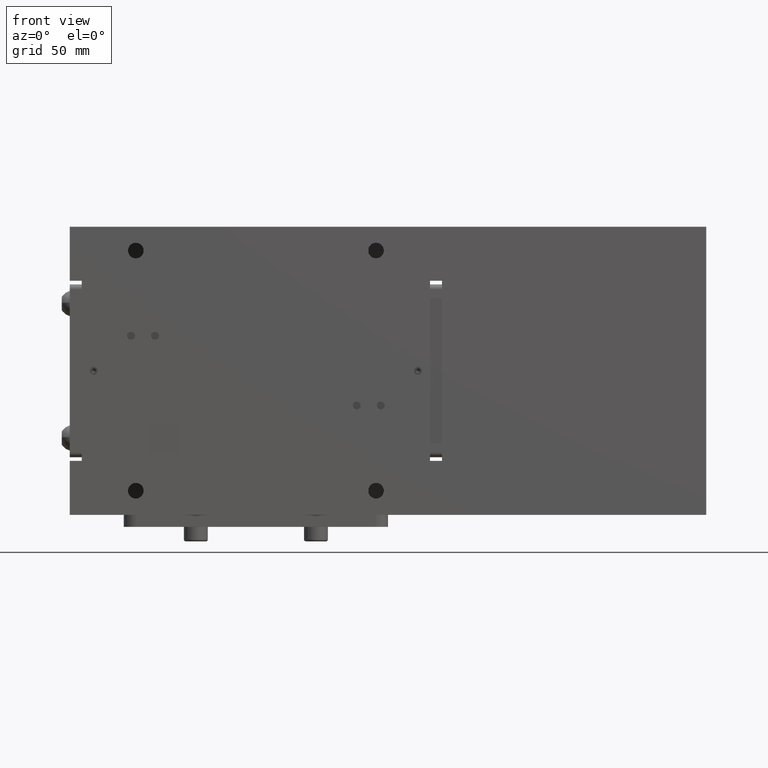
[diagram: clean part render]
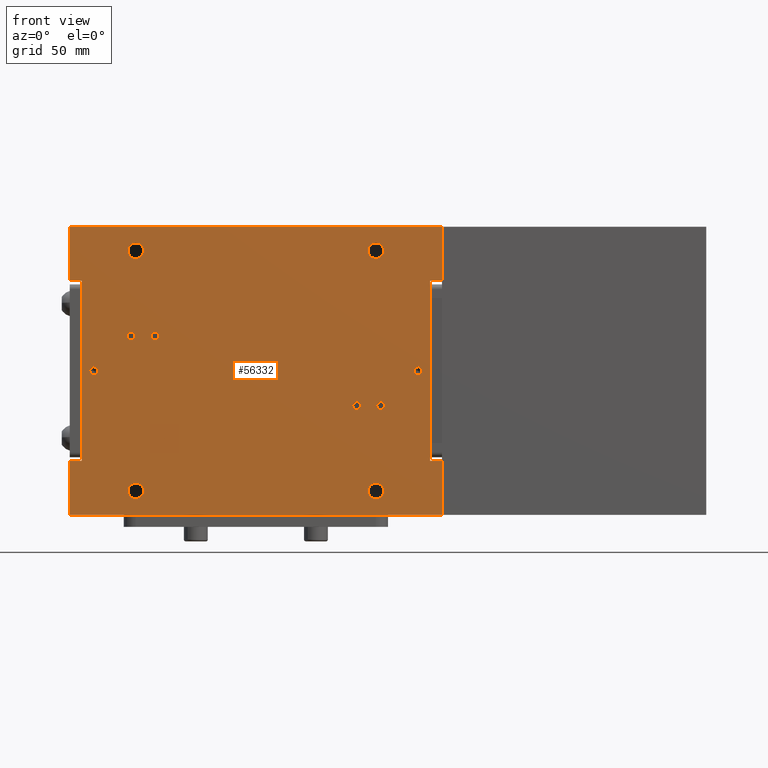
[diagram: same view with one face highlighted and labeled with its STEP entity id]
A machine part, front view. The second image highlights one B-rep face of the part: STEP entity #56332.
In plain terms, the highlighted planar face has unit normal (-0, 1, 0).
Its self-contained STEP definition (entity closure, byte-faithful):
#307 = VERTEX_POINT ( 'NONE', #23247 ) ;
#1200 = DIRECTION ( 'NONE',  ( 0.000000000000000000, 0.000000000000000000, 1.000000000000000000 ) ) ;
#1221 = ORIENTED_EDGE ( 'NONE', *, *, #80671, .T. ) ;
#1493 = CARTESIAN_POINT ( 'NONE',  ( -44.35429836251654478, -18.10616229669854960, -47.75124999999999886 ) ) ;
#1503 = VERTEX_POINT ( 'NONE', #42353 ) ;
#1742 = DIRECTION ( 'NONE',  ( 0.000000000000000000, 0.000000000000000000, 1.000000000000000000 ) ) ;
#2254 = EDGE_LOOP ( 'NONE', ( #80503, #1221 ) ) ;
#2604 = CARTESIAN_POINT ( 'NONE',  ( -26.85429836251655189, -18.10616229669854960, 7.148749999999999716 ) ) ;
#2997 = VERTEX_POINT ( 'NONE', #17895 ) ;
#3088 = CARTESIAN_POINT ( 'NONE',  ( -42.35429836251655189, -18.10616229669854960, -9.001250000000000639 ) ) ;
#3597 = EDGE_LOOP ( 'NONE', ( #56552, #100903 ) ) ;
#3642 = AXIS2_PLACEMENT_3D ( 'NONE', #10009, #41010, #1200 ) ;
#4418 = CARTESIAN_POINT ( 'NONE',  ( -26.85429836251655189, -18.10616229669854960, 5.498750000000000249 ) ) ;
#4572 = DIRECTION ( 'NONE',  ( 0.000000000000000000, 0.000000000000000000, -1.000000000000000000 ) ) ;
#4730 = DIRECTION ( 'NONE',  ( 0.000000000000000000, 1.000000000000000000, 0.000000000000000000 ) ) ;
#5128 = EDGE_LOOP ( 'NONE', ( #80341, #46297 ) ) ;
#5617 = DIRECTION ( 'NONE',  ( 0.000000000000000000, 1.000000000000000000, 0.000000000000000000 ) ) ;
#5860 = VERTEX_POINT ( 'NONE', #48699 ) ;
#5982 = VECTOR ( 'NONE', #76721, 1000.000000000000000 ) ;
#6196 = CARTESIAN_POINT ( 'NONE',  ( -171.8542983625165164, -18.10616229669854960, 65.49875000000000114 ) ) ;
#6646 = FACE_BOUND ( 'NONE', #77941, .T. ) ;
#7449 = DIRECTION ( 'NONE',  ( 1.000000000000000000, 0.000000000000000000, 0.000000000000000000 ) ) ;
#7868 = EDGE_CURVE ( 'NONE', #1503, #36869, #94006, .T. ) ;
#7961 = CIRCLE ( 'NONE', #34397, 3.250000000000002665 ) ;
#8284 = CARTESIAN_POINT ( 'NONE',  ( -21.85429836251660163, -18.10616229669854960, -32.00124999999999886 ) ) ;
#8466 = VERTEX_POINT ( 'NONE', #94250 ) ;
#8762 = CARTESIAN_POINT ( 'NONE',  ( -144.3542983625166016, -18.10616229669854960, 58.74875000000000114 ) ) ;
#9045 = EDGE_CURVE ( 'NONE', #95025, #1503, #66116, .T. ) ;
#9148 = EDGE_CURVE ( 'NONE', #13695, #70815, #74669, .T. ) ;
#9570 = CARTESIAN_POINT ( 'NONE',  ( -144.3542983625166016, -18.10616229669854960, -44.50124999999999886 ) ) ;
#9864 = EDGE_CURVE ( 'NONE', #32873, #14777, #102205, .T. ) ;
#10009 = CARTESIAN_POINT ( 'NONE',  ( -136.3542983625166016, -18.10616229669854960, 19.99874999999999758 ) ) ;
#10697 = AXIS2_PLACEMENT_3D ( 'NONE', #51272, #10971, #82768 ) ;
#10792 = ORIENTED_EDGE ( 'NONE', *, *, #89266, .T. ) ;
#10971 = DIRECTION ( 'NONE',  ( 0.000000000000000000, 1.000000000000000000, 0.000000000000000000 ) ) ;
#12029 = EDGE_LOOP ( 'NONE', ( #91526, #21223, #33954, #73159, #85878, #92206, #70448, #78042, #54751, #10792, #73101, #37298 ) ) ;
#12072 = EDGE_CURVE ( 'NONE', #14777, #32873, #32642, .T. ) ;
#12330 = DIRECTION ( 'NONE',  ( 0.000000000000000000, -1.000000000000000000, 0.000000000000000000 ) ) ;
#12857 = FACE_BOUND ( 'NONE', #5128, .T. ) ;
#13369 = FACE_BOUND ( 'NONE', #28190, .T. ) ;
#13520 = DIRECTION ( 'NONE',  ( 0.000000000000000000, 0.000000000000000000, 1.000000000000000000 ) ) ;
#13650 = CARTESIAN_POINT ( 'NONE',  ( -166.8542983625164879, -18.10616229669854960, 42.99875000000000114 ) ) ;
#13695 = VERTEX_POINT ( 'NONE', #43090 ) ;
#13783 = DIRECTION ( 'NONE',  ( 0.000000000000000000, 1.000000000000000000, 0.000000000000000000 ) ) ;
#13878 = CARTESIAN_POINT ( 'NONE',  ( -218.3542983625164879, -18.10616229669854960, 65.49875000000000114 ) ) ;
#14713 = CARTESIAN_POINT ( 'NONE',  ( -21.85429836251660163, -18.10616229669854960, -32.00124999999999886 ) ) ;
#14723 = AXIS2_PLACEMENT_3D ( 'NONE', #51949, #61267, #92737 ) ;
#14777 = VERTEX_POINT ( 'NONE', #62173 ) ;
#14916 = DIRECTION ( 'NONE',  ( 0.000000000000000000, 0.000000000000000000, 1.000000000000000000 ) ) ;
#15637 = ORIENTED_EDGE ( 'NONE', *, *, #65163, .T. ) ;
#15784 = DIRECTION ( 'NONE',  ( 0.000000000000000000, 0.000000000000000000, 1.000000000000000000 ) ) ;
#16014 = EDGE_CURVE ( 'NONE', #84184, #48202, #18624, .T. ) ;
#16158 = CARTESIAN_POINT ( 'NONE',  ( -161.8542983625164879, -18.10616229669854960, 3.848750000000000338 ) ) ;
#16332 = VECTOR ( 'NONE', #41901, 1000.000000000000000 ) ;
#16625 = AXIS2_PLACEMENT_3D ( 'NONE', #82014, #52545, #99564 ) ;
#16761 = DIRECTION ( 'NONE',  ( 0.000000000000000000, 0.000000000000000000, 1.000000000000000000 ) ) ;
#16932 = CARTESIAN_POINT ( 'NONE',  ( -171.8542983625165164, -18.10616229669854960, -32.00124999999999886 ) ) ;
#17027 = DIRECTION ( 'NONE',  ( -1.000000000000000000, 0.000000000000000000, 0.000000000000000000 ) ) ;
#17251 = DIRECTION ( 'NONE',  ( 0.000000000000000000, 1.000000000000000000, 0.000000000000000000 ) ) ;
#17672 = ORIENTED_EDGE ( 'NONE', *, *, #9864, .F. ) ;
#17895 = CARTESIAN_POINT ( 'NONE',  ( -44.35429836251654478, -18.10616229669854960, -41.25125000000000597 ) ) ;
#17901 = LINE ( 'NONE', #50428, #94232 ) ;
#18624 = CIRCLE ( 'NONE', #46707, 3.250000000000002665 ) ;
#18680 = AXIS2_PLACEMENT_3D ( 'NONE', #60811, #13783, #84543 ) ;
#19588 = ORIENTED_EDGE ( 'NONE', *, *, #91550, .T. ) ;
#19825 = VERTEX_POINT ( 'NONE', #36019 ) ;
#20040 = DIRECTION ( 'NONE',  ( 0.000000000000000000, 0.000000000000000000, 1.000000000000000000 ) ) ;
#20267 = VECTOR ( 'NONE', #13520, 1000.000000000000000 ) ;
#21223 = ORIENTED_EDGE ( 'NONE', *, *, #80102, .T. ) ;
#21259 = CARTESIAN_POINT ( 'NONE',  ( -144.3542983625166016, -18.10616229669854960, 55.49875000000000114 ) ) ;
#21633 = DIRECTION ( 'NONE',  ( -0.000000000000000000, 1.000000000000000000, 0.000000000000000000 ) ) ;
#21867 = CIRCLE ( 'NONE', #3642, 1.649999999999998579 ) ;
#22224 = VERTEX_POINT ( 'NONE', #64889 ) ;
#22962 = CIRCLE ( 'NONE', #14723, 1.649999999999998579 ) ;
#23247 = CARTESIAN_POINT ( 'NONE',  ( -42.35429836251655189, -18.10616229669854960, -10.65124999999999922 ) ) ;
#23902 = CARTESIAN_POINT ( 'NONE',  ( -136.3542983625166016, -18.10616229669854960, 21.64874999999999972 ) ) ;
#24616 = DIRECTION ( 'NONE',  ( 0.000000000000000000, 1.000000000000000000, 0.000000000000000000 ) ) ;
#24859 = LINE ( 'NONE', #26407, #16332 ) ;
#25233 = CIRCLE ( 'NONE', #38463, 3.250000000000002665 ) ;
#25245 = CARTESIAN_POINT ( 'NONE',  ( -166.8542983625164879, -18.10616229669854960, -32.00124999999999886 ) ) ;
#25277 = VECTOR ( 'NONE', #84782, 1000.000000000000000 ) ;
#26407 = CARTESIAN_POINT ( 'NONE',  ( -218.3542983625164879, -18.10616229669854960, -54.50124999999999886 ) ) ;
#26640 = AXIS2_PLACEMENT_3D ( 'NONE', #26925, #24616, #87612 ) ;
#26695 = ORIENTED_EDGE ( 'NONE', *, *, #61533, .T. ) ;
#26828 = CARTESIAN_POINT ( 'NONE',  ( -166.8542983625164879, -18.10616229669854960, 42.99875000000000114 ) ) ;
#26925 = CARTESIAN_POINT ( 'NONE',  ( -44.35429836251654478, -18.10616229669854960, 55.49875000000000114 ) ) ;
#26989 = CARTESIAN_POINT ( 'NONE',  ( -44.35429836251654478, -18.10616229669854960, -44.50124999999999886 ) ) ;
#28011 = VERTEX_POINT ( 'NONE', #1493 ) ;
#28190 = EDGE_LOOP ( 'NONE', ( #74066, #26695 ) ) ;
#28217 = CIRCLE ( 'NONE', #16625, 1.650000000000000355 ) ;
#28269 = CARTESIAN_POINT ( 'NONE',  ( -161.8542983625164879, -18.10616229669854960, 5.498750000000000249 ) ) ;
#28378 = DIRECTION ( 'NONE',  ( 1.000000000000000000, 0.000000000000000000, 0.000000000000000000 ) ) ;
#28710 = CARTESIAN_POINT ( 'NONE',  ( -144.3542983625166016, -18.10616229669854960, 52.24874999999999403 ) ) ;
#29206 = CARTESIAN_POINT ( 'NONE',  ( -21.85429836251660163, -18.10616229669854960, 42.99875000000000114 ) ) ;
#29228 = AXIS2_PLACEMENT_3D ( 'NONE', #59301, #90801, #20040 ) ;
#29413 = FACE_BOUND ( 'NONE', #89145, .T. ) ;
#29706 = DIRECTION ( 'NONE',  ( 0.000000000000000000, 1.000000000000000000, 0.000000000000000000 ) ) ;
#30359 = CIRCLE ( 'NONE', #45226, 3.250000000000002665 ) ;
#30731 = CARTESIAN_POINT ( 'NONE',  ( -218.3542983625164879, -18.10616229669854960, 65.49875000000000114 ) ) ;
#31014 = AXIS2_PLACEMENT_3D ( 'NONE', #28269, #67014, #99541 ) ;
#31188 = VERTEX_POINT ( 'NONE', #57046 ) ;
#31868 = VERTEX_POINT ( 'NONE', #78931 ) ;
#31937 = VERTEX_POINT ( 'NONE', #16932 ) ;
#32484 = CIRCLE ( 'NONE', #29228, 1.650000000000000355 ) ;
#32642 = CIRCLE ( 'NONE', #31014, 1.649999999999999911 ) ;
#32873 = VERTEX_POINT ( 'NONE', #16158 ) ;
#33954 = ORIENTED_EDGE ( 'NONE', *, *, #41402, .F. ) ;
#34007 = AXIS2_PLACEMENT_3D ( 'NONE', #13878, #21633, #28378 ) ;
#34256 = AXIS2_PLACEMENT_3D ( 'NONE', #38985, #17251, #1742 ) ;
#34397 = AXIS2_PLACEMENT_3D ( 'NONE', #26989, #67278, #90506 ) ;
#34571 = VECTOR ( 'NONE', #7449, 1000.000000000000000 ) ;
#35185 = VERTEX_POINT ( 'NONE', #82139 ) ;
#35319 = VERTEX_POINT ( 'NONE', #2604 ) ;
#36019 = CARTESIAN_POINT ( 'NONE',  ( -144.3542983625166016, -18.10616229669854960, -47.75124999999999886 ) ) ;
#36256 = EDGE_CURVE ( 'NONE', #36869, #47008, #63734, .T. ) ;
#36782 = LINE ( 'NONE', #62072, #20267 ) ;
#36869 = VERTEX_POINT ( 'NONE', #6196 ) ;
#37298 = ORIENTED_EDGE ( 'NONE', *, *, #64914, .F. ) ;
#38463 = AXIS2_PLACEMENT_3D ( 'NONE', #9570, #94790, #15784 ) ;
#38985 = CARTESIAN_POINT ( 'NONE',  ( -42.35429836251655189, -18.10616229669854960, -9.001250000000000639 ) ) ;
#39575 = CIRCLE ( 'NONE', #62660, 1.649999999999999911 ) ;
#39938 = VERTEX_POINT ( 'NONE', #79782 ) ;
#40231 = EDGE_CURVE ( 'NONE', #66039, #85651, #67989, .T. ) ;
#40607 = EDGE_CURVE ( 'NONE', #48202, #84184, #69705, .T. ) ;
#40717 = CARTESIAN_POINT ( 'NONE',  ( -166.8542983625164879, -18.10616229669854960, -32.00124999999999886 ) ) ;
#41010 = DIRECTION ( 'NONE',  ( 0.000000000000000000, 1.000000000000000000, 0.000000000000000000 ) ) ;
#41358 = EDGE_CURVE ( 'NONE', #51465, #95025, #36782, .T. ) ;
#41402 = EDGE_CURVE ( 'NONE', #47008, #39938, #91505, .T. ) ;
#41901 = DIRECTION ( 'NONE',  ( 1.000000000000000000, 0.000000000000000000, 0.000000000000000000 ) ) ;
#42353 = CARTESIAN_POINT ( 'NONE',  ( -171.8542983625165164, -18.10616229669854960, 42.99875000000000114 ) ) ;
#42799 = EDGE_LOOP ( 'NONE', ( #87019, #58514 ) ) ;
#43071 = CARTESIAN_POINT ( 'NONE',  ( -42.35429836251655189, -18.10616229669854960, -7.351250000000000284 ) ) ;
#43090 = CARTESIAN_POINT ( 'NONE',  ( -16.85429836251660163, -18.10616229669854960, -32.00124999999999886 ) ) ;
#44444 = EDGE_CURVE ( 'NONE', #51465, #31937, #55223, .T. ) ;
#44669 = EDGE_CURVE ( 'NONE', #52687, #35319, #98794, .T. ) ;
#45226 = AXIS2_PLACEMENT_3D ( 'NONE', #56175, #64477, #56685 ) ;
#45400 = FACE_BOUND ( 'NONE', #42799, .T. ) ;
#45776 = EDGE_CURVE ( 'NONE', #35319, #52687, #39575, .T. ) ;
#46297 = ORIENTED_EDGE ( 'NONE', *, *, #40607, .T. ) ;
#46707 = AXIS2_PLACEMENT_3D ( 'NONE', #85431, #29706, #54918 ) ;
#46725 = DIRECTION ( 'NONE',  ( 1.000000000000000000, 0.000000000000000000, 0.000000000000000000 ) ) ;
#47008 = VERTEX_POINT ( 'NONE', #95884 ) ;
#47349 = CARTESIAN_POINT ( 'NONE',  ( -26.85429836251655189, -18.10616229669854960, 5.498750000000000249 ) ) ;
#47599 = VECTOR ( 'NONE', #49016, 1000.000000000000000 ) ;
#47709 = CARTESIAN_POINT ( 'NONE',  ( -21.85429836251660163, -18.10616229669854960, 42.99875000000000114 ) ) ;
#47788 = EDGE_CURVE ( 'NONE', #81873, #68776, #87590, .T. ) ;
#48015 = EDGE_CURVE ( 'NONE', #31868, #31937, #17901, .T. ) ;
#48202 = VERTEX_POINT ( 'NONE', #28710 ) ;
#48623 = CIRCLE ( 'NONE', #51926, 1.650000000000000355 ) ;
#48699 = CARTESIAN_POINT ( 'NONE',  ( -146.3542983625166016, -18.10616229669854960, 18.34874999999999901 ) ) ;
#48869 = CARTESIAN_POINT ( 'NONE',  ( -16.85429836251660163, -18.10616229669854960, 65.49875000000000114 ) ) ;
#49016 = DIRECTION ( 'NONE',  ( -1.000000000000000000, 0.000000000000000000, 0.000000000000000000 ) ) ;
#50317 = CIRCLE ( 'NONE', #10697, 3.250000000000002665 ) ;
#50428 = CARTESIAN_POINT ( 'NONE',  ( -171.8542983625165164, -18.10616229669854960, -54.50124999999999886 ) ) ;
#50951 = DIRECTION ( 'NONE',  ( 0.000000000000000000, -1.000000000000000000, 0.000000000000000000 ) ) ;
#51272 = CARTESIAN_POINT ( 'NONE',  ( -144.3542983625166016, -18.10616229669854960, -44.50124999999999886 ) ) ;
#51465 = VERTEX_POINT ( 'NONE', #40717 ) ;
#51651 = EDGE_CURVE ( 'NONE', #31188, #5860, #79643, .T. ) ;
#51926 = AXIS2_PLACEMENT_3D ( 'NONE', #3088, #5617, #14916 ) ;
#51949 = CARTESIAN_POINT ( 'NONE',  ( -146.3542983625166016, -18.10616229669854960, 19.99874999999999758 ) ) ;
#52115 = FACE_BOUND ( 'NONE', #62561, .T. ) ;
#52545 = DIRECTION ( 'NONE',  ( 0.000000000000000000, 1.000000000000000000, 0.000000000000000000 ) ) ;
#52632 = FACE_OUTER_BOUND ( 'NONE', #12029, .T. ) ;
#52687 = VERTEX_POINT ( 'NONE', #87657 ) ;
#53067 = EDGE_LOOP ( 'NONE', ( #17672, #79413 ) ) ;
#53139 = PLANE ( 'NONE',  #34007 ) ;
#53453 = LINE ( 'NONE', #29206, #5982 ) ;
#54751 = ORIENTED_EDGE ( 'NONE', *, *, #48015, .F. ) ;
#54814 = VECTOR ( 'NONE', #46725, 1000.000000000000000 ) ;
#54918 = DIRECTION ( 'NONE',  ( 0.000000000000000000, 0.000000000000000000, 1.000000000000000000 ) ) ;
#55223 = LINE ( 'NONE', #25245, #47599 ) ;
#56175 = CARTESIAN_POINT ( 'NONE',  ( -44.35429836251654478, -18.10616229669854960, -44.50124999999999886 ) ) ;
#56196 = CARTESIAN_POINT ( 'NONE',  ( -144.3542983625166016, -18.10616229669854960, -41.25125000000000597 ) ) ;
#56332 = ADVANCED_FACE ( 'NONE', ( #99139, #52115, #85151, #59368, #13369, #45400, #29413, #6646, #12857, #84633, #52632 ), #53139, .F. ) ;
#56552 = ORIENTED_EDGE ( 'NONE', *, *, #44669, .F. ) ;
#56685 = DIRECTION ( 'NONE',  ( 0.000000000000000000, 0.000000000000000000, 1.000000000000000000 ) ) ;
#57046 = CARTESIAN_POINT ( 'NONE',  ( -146.3542983625166016, -18.10616229669854960, 21.64874999999999972 ) ) ;
#57553 = CARTESIAN_POINT ( 'NONE',  ( -44.35429836251654478, -18.10616229669854960, 58.74875000000000114 ) ) ;
#58514 = ORIENTED_EDGE ( 'NONE', *, *, #101010, .T. ) ;
#59301 = CARTESIAN_POINT ( 'NONE',  ( -52.35429836251660163, -18.10616229669854960, -9.001250000000000639 ) ) ;
#59368 = FACE_BOUND ( 'NONE', #76021, .T. ) ;
#60811 = CARTESIAN_POINT ( 'NONE',  ( -146.3542983625166016, -18.10616229669854960, 19.99874999999999758 ) ) ;
#61267 = DIRECTION ( 'NONE',  ( 0.000000000000000000, 1.000000000000000000, 0.000000000000000000 ) ) ;
#61340 = ORIENTED_EDGE ( 'NONE', *, *, #74859, .T. ) ;
#61533 = EDGE_CURVE ( 'NONE', #5860, #31188, #22962, .T. ) ;
#62072 = CARTESIAN_POINT ( 'NONE',  ( -166.8542983625164879, -18.10616229669854960, -32.00124999999999886 ) ) ;
#62173 = CARTESIAN_POINT ( 'NONE',  ( -161.8542983625164879, -18.10616229669854960, 7.148749999999999716 ) ) ;
#62238 = LINE ( 'NONE', #14713, #54814 ) ;
#62292 = ORIENTED_EDGE ( 'NONE', *, *, #78589, .T. ) ;
#62561 = EDGE_LOOP ( 'NONE', ( #15637, #97088 ) ) ;
#62603 = AXIS2_PLACEMENT_3D ( 'NONE', #67101, #12330, #4572 ) ;
#62660 = AXIS2_PLACEMENT_3D ( 'NONE', #4418, #50951, #75721 ) ;
#63371 = DIRECTION ( 'NONE',  ( 0.000000000000000000, 0.000000000000000000, -1.000000000000000000 ) ) ;
#63589 = EDGE_CURVE ( 'NONE', #35185, #22224, #28217, .T. ) ;
#63734 = LINE ( 'NONE', #30731, #34571 ) ;
#64477 = DIRECTION ( 'NONE',  ( 0.000000000000000000, 1.000000000000000000, 0.000000000000000000 ) ) ;
#64867 = CARTESIAN_POINT ( 'NONE',  ( -136.3542983625166016, -18.10616229669854960, 18.34874999999999901 ) ) ;
#64889 = CARTESIAN_POINT ( 'NONE',  ( -52.35429836251660163, -18.10616229669854960, -10.65124999999999922 ) ) ;
#64914 = EDGE_CURVE ( 'NONE', #69086, #13695, #62238, .T. ) ;
#65163 = EDGE_CURVE ( 'NONE', #85651, #66039, #21867, .T. ) ;
#65950 = DIRECTION ( 'NONE',  ( 0.000000000000000000, -8.673617379884039170E-17, 1.000000000000000000 ) ) ;
#66039 = VERTEX_POINT ( 'NONE', #64867 ) ;
#66116 = LINE ( 'NONE', #26828, #88837 ) ;
#67014 = DIRECTION ( 'NONE',  ( 0.000000000000000000, -1.000000000000000000, 0.000000000000000000 ) ) ;
#67101 = CARTESIAN_POINT ( 'NONE',  ( -161.8542983625164879, -18.10616229669854960, 5.498750000000000249 ) ) ;
#67278 = DIRECTION ( 'NONE',  ( 0.000000000000000000, 1.000000000000000000, 0.000000000000000000 ) ) ;
#67989 = CIRCLE ( 'NONE', #92753, 1.649999999999998579 ) ;
#68776 = VERTEX_POINT ( 'NONE', #57553 ) ;
#68889 = CARTESIAN_POINT ( 'NONE',  ( -136.3542983625166016, -18.10616229669854960, 19.99874999999999758 ) ) ;
#69086 = VERTEX_POINT ( 'NONE', #8284 ) ;
#69410 = DIRECTION ( 'NONE',  ( 0.000000000000000000, 0.000000000000000000, 1.000000000000000000 ) ) ;
#69705 = CIRCLE ( 'NONE', #81254, 3.250000000000002665 ) ;
#69898 = ORIENTED_EDGE ( 'NONE', *, *, #81239, .T. ) ;
#70127 = CARTESIAN_POINT ( 'NONE',  ( -44.35429836251654478, -18.10616229669854960, 52.24874999999999403 ) ) ;
#70448 = ORIENTED_EDGE ( 'NONE', *, *, #41358, .F. ) ;
#70815 = VERTEX_POINT ( 'NONE', #75837 ) ;
#72756 = AXIS2_PLACEMENT_3D ( 'NONE', #79763, #96802, #16761 ) ;
#73101 = ORIENTED_EDGE ( 'NONE', *, *, #9148, .F. ) ;
#73159 = ORIENTED_EDGE ( 'NONE', *, *, #36256, .F. ) ;
#73653 = DIRECTION ( 'NONE',  ( 0.000000000000000000, 0.000000000000000000, -1.000000000000000000 ) ) ;
#74066 = ORIENTED_EDGE ( 'NONE', *, *, #51651, .T. ) ;
#74669 = LINE ( 'NONE', #48869, #102120 ) ;
#74859 = EDGE_CURVE ( 'NONE', #78778, #19825, #25233, .T. ) ;
#75189 = EDGE_CURVE ( 'NONE', #8466, #69086, #87440, .T. ) ;
#75721 = DIRECTION ( 'NONE',  ( 0.000000000000000000, 0.000000000000000000, -1.000000000000000000 ) ) ;
#75837 = CARTESIAN_POINT ( 'NONE',  ( -16.85429836251660163, -18.10616229669854960, -54.50124999999999886 ) ) ;
#76021 = EDGE_LOOP ( 'NONE', ( #83951, #69898 ) ) ;
#76539 = CARTESIAN_POINT ( 'NONE',  ( -16.85429836251660163, -18.10616229669854960, 65.49875000000000114 ) ) ;
#76721 = DIRECTION ( 'NONE',  ( 1.000000000000000000, 0.000000000000000000, 0.000000000000000000 ) ) ;
#76824 = EDGE_CURVE ( 'NONE', #83433, #307, #48623, .T. ) ;
#77941 = EDGE_LOOP ( 'NONE', ( #19588, #92029 ) ) ;
#78042 = ORIENTED_EDGE ( 'NONE', *, *, #44444, .T. ) ;
#78589 = EDGE_CURVE ( 'NONE', #19825, #78778, #50317, .T. ) ;
#78778 = VERTEX_POINT ( 'NONE', #56196 ) ;
#78931 = CARTESIAN_POINT ( 'NONE',  ( -171.8542983625165164, -18.10616229669854960, -54.50124999999999886 ) ) ;
#79413 = ORIENTED_EDGE ( 'NONE', *, *, #12072, .F. ) ;
#79523 = CARTESIAN_POINT ( 'NONE',  ( -171.8542983625165164, -18.10616229669854960, -54.50124999999999886 ) ) ;
#79643 = CIRCLE ( 'NONE', #18680, 1.649999999999998579 ) ;
#79763 = CARTESIAN_POINT ( 'NONE',  ( -44.35429836251654478, -18.10616229669854960, 55.49875000000000114 ) ) ;
#79782 = CARTESIAN_POINT ( 'NONE',  ( -16.85429836251660163, -18.10616229669854960, 42.99875000000000114 ) ) ;
#80102 = EDGE_CURVE ( 'NONE', #8466, #39938, #53453, .T. ) ;
#80341 = ORIENTED_EDGE ( 'NONE', *, *, #16014, .T. ) ;
#80503 = ORIENTED_EDGE ( 'NONE', *, *, #63589, .T. ) ;
#80671 = EDGE_CURVE ( 'NONE', #22224, #35185, #32484, .T. ) ;
#81239 = EDGE_CURVE ( 'NONE', #307, #83433, #98526, .T. ) ;
#81254 = AXIS2_PLACEMENT_3D ( 'NONE', #21259, #4730, #83745 ) ;
#81873 = VERTEX_POINT ( 'NONE', #70127 ) ;
#82014 = CARTESIAN_POINT ( 'NONE',  ( -52.35429836251660163, -18.10616229669854960, -9.001250000000000639 ) ) ;
#82139 = CARTESIAN_POINT ( 'NONE',  ( -52.35429836251660163, -18.10616229669854960, -7.351250000000000284 ) ) ;
#82634 = CIRCLE ( 'NONE', #72756, 3.250000000000002665 ) ;
#82768 = DIRECTION ( 'NONE',  ( 0.000000000000000000, 0.000000000000000000, 1.000000000000000000 ) ) ;
#83433 = VERTEX_POINT ( 'NONE', #43071 ) ;
#83745 = DIRECTION ( 'NONE',  ( 0.000000000000000000, 0.000000000000000000, 1.000000000000000000 ) ) ;
#83951 = ORIENTED_EDGE ( 'NONE', *, *, #76824, .T. ) ;
#84184 = VERTEX_POINT ( 'NONE', #8762 ) ;
#84543 = DIRECTION ( 'NONE',  ( 0.000000000000000000, 0.000000000000000000, 1.000000000000000000 ) ) ;
#84633 = FACE_BOUND ( 'NONE', #53067, .T. ) ;
#84782 = DIRECTION ( 'NONE',  ( 0.000000000000000000, 0.000000000000000000, -1.000000000000000000 ) ) ;
#85151 = FACE_BOUND ( 'NONE', #2254, .T. ) ;
#85431 = CARTESIAN_POINT ( 'NONE',  ( -144.3542983625166016, -18.10616229669854960, 55.49875000000000114 ) ) ;
#85651 = VERTEX_POINT ( 'NONE', #23902 ) ;
#85755 = DIRECTION ( 'NONE',  ( 0.000000000000000000, -8.673617379884039170E-17, 1.000000000000000000 ) ) ;
#85878 = ORIENTED_EDGE ( 'NONE', *, *, #7868, .F. ) ;
#87019 = ORIENTED_EDGE ( 'NONE', *, *, #94831, .T. ) ;
#87093 = DIRECTION ( 'NONE',  ( 0.000000000000000000, -1.000000000000000000, 0.000000000000000000 ) ) ;
#87440 = LINE ( 'NONE', #47709, #97885 ) ;
#87590 = CIRCLE ( 'NONE', #26640, 3.250000000000002665 ) ;
#87612 = DIRECTION ( 'NONE',  ( 0.000000000000000000, 0.000000000000000000, 1.000000000000000000 ) ) ;
#87657 = CARTESIAN_POINT ( 'NONE',  ( -26.85429836251655189, -18.10616229669854960, 3.848750000000000338 ) ) ;
#88372 = VECTOR ( 'NONE', #85755, 1000.000000000000000 ) ;
#88837 = VECTOR ( 'NONE', #17027, 1000.000000000000000 ) ;
#89145 = EDGE_LOOP ( 'NONE', ( #61340, #62292 ) ) ;
#89266 = EDGE_CURVE ( 'NONE', #31868, #70815, #24859, .T. ) ;
#90506 = DIRECTION ( 'NONE',  ( 0.000000000000000000, 0.000000000000000000, 1.000000000000000000 ) ) ;
#90510 = AXIS2_PLACEMENT_3D ( 'NONE', #47349, #87093, #63371 ) ;
#90801 = DIRECTION ( 'NONE',  ( 0.000000000000000000, 1.000000000000000000, 0.000000000000000000 ) ) ;
#91505 = LINE ( 'NONE', #76539, #25277 ) ;
#91526 = ORIENTED_EDGE ( 'NONE', *, *, #75189, .F. ) ;
#91550 = EDGE_CURVE ( 'NONE', #68776, #81873, #82634, .T. ) ;
#92029 = ORIENTED_EDGE ( 'NONE', *, *, #47788, .T. ) ;
#92206 = ORIENTED_EDGE ( 'NONE', *, *, #9045, .F. ) ;
#92737 = DIRECTION ( 'NONE',  ( 0.000000000000000000, 0.000000000000000000, 1.000000000000000000 ) ) ;
#92753 = AXIS2_PLACEMENT_3D ( 'NONE', #68889, #100410, #69410 ) ;
#94006 = LINE ( 'NONE', #79523, #88372 ) ;
#94232 = VECTOR ( 'NONE', #65950, 1000.000000000000000 ) ;
#94250 = CARTESIAN_POINT ( 'NONE',  ( -21.85429836251660163, -18.10616229669854960, 42.99875000000000114 ) ) ;
#94790 = DIRECTION ( 'NONE',  ( 0.000000000000000000, 1.000000000000000000, 0.000000000000000000 ) ) ;
#94831 = EDGE_CURVE ( 'NONE', #2997, #28011, #30359, .T. ) ;
#95025 = VERTEX_POINT ( 'NONE', #13650 ) ;
#95189 = DIRECTION ( 'NONE',  ( 0.000000000000000000, 0.000000000000000000, -1.000000000000000000 ) ) ;
#95884 = CARTESIAN_POINT ( 'NONE',  ( -16.85429836251660163, -18.10616229669854960, 65.49875000000000114 ) ) ;
#96802 = DIRECTION ( 'NONE',  ( 0.000000000000000000, 1.000000000000000000, 0.000000000000000000 ) ) ;
#97088 = ORIENTED_EDGE ( 'NONE', *, *, #40231, .T. ) ;
#97885 = VECTOR ( 'NONE', #95189, 1000.000000000000000 ) ;
#98526 = CIRCLE ( 'NONE', #34256, 1.650000000000000355 ) ;
#98794 = CIRCLE ( 'NONE', #90510, 1.649999999999999911 ) ;
#99139 = FACE_BOUND ( 'NONE', #3597, .T. ) ;
#99541 = DIRECTION ( 'NONE',  ( 0.000000000000000000, 0.000000000000000000, -1.000000000000000000 ) ) ;
#99564 = DIRECTION ( 'NONE',  ( 0.000000000000000000, 0.000000000000000000, 1.000000000000000000 ) ) ;
#100410 = DIRECTION ( 'NONE',  ( 0.000000000000000000, 1.000000000000000000, 0.000000000000000000 ) ) ;
#100903 = ORIENTED_EDGE ( 'NONE', *, *, #45776, .F. ) ;
#101010 = EDGE_CURVE ( 'NONE', #28011, #2997, #7961, .T. ) ;
#102120 = VECTOR ( 'NONE', #73653, 1000.000000000000000 ) ;
#102205 = CIRCLE ( 'NONE', #62603, 1.649999999999999911 ) ;